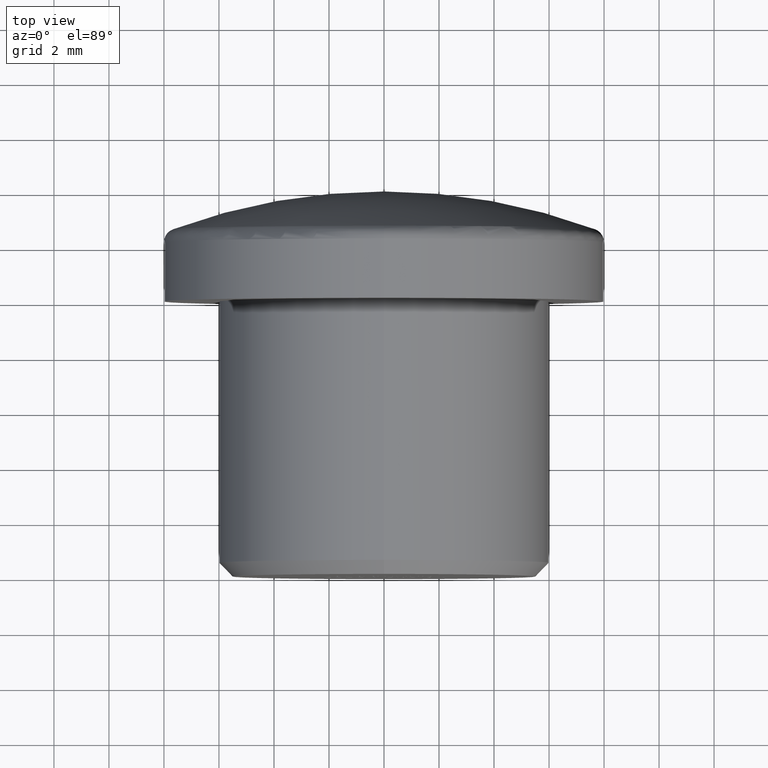
[diagram: clean part render]
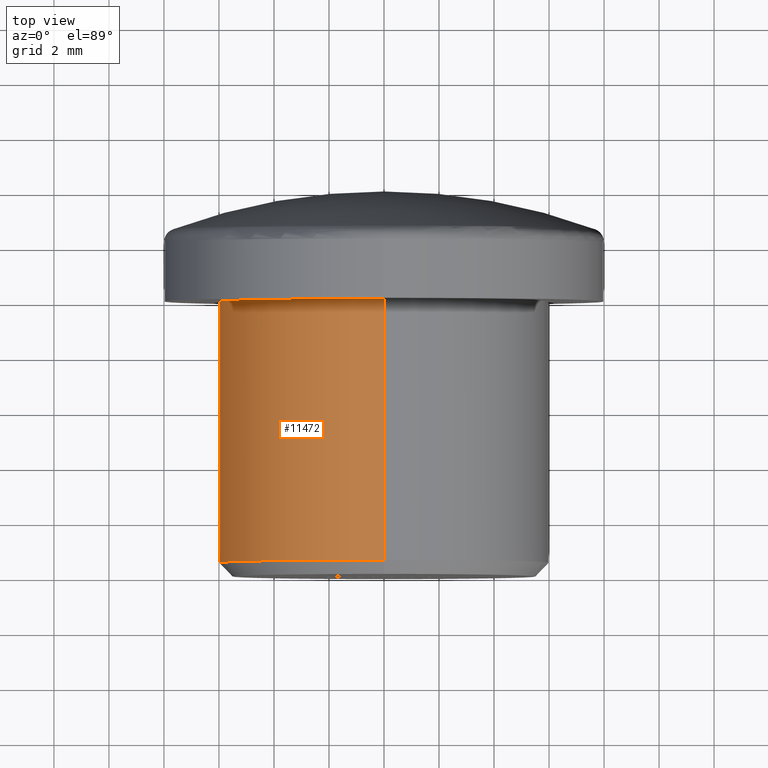
[diagram: same view with one face highlighted and labeled with its STEP entity id]
A machine part, top view. The second image highlights one B-rep face of the part: STEP entity #11472.
In plain terms, the highlighted cylindrical surface (partial cylindrical patch) has radius 6 mm, axis along (-0, -1, -0).
Its self-contained STEP definition (entity closure, byte-faithful):
#661 = VERTEX_POINT ( 'NONE', #1964 ) ;
#1613 = EDGE_LOOP ( 'NONE', ( #6560, #2227, #9747, #9414 ) ) ;
#1639 = DIRECTION ( 'NONE',  ( -0.0000000000000000000, -1.000000000000000000, -0.0000000000000000000 ) ) ;
#1964 = CARTESIAN_POINT ( 'NONE',  ( 7.347880794884119700E-016, 0.5000000000000030000, 6.000000000000000000 ) ) ;
#2142 = DIRECTION ( 'NONE',  ( -0.0000000000000000000, -1.000000000000000000, -0.0000000000000000000 ) ) ;
#2227 = ORIENTED_EDGE ( 'NONE', *, *, #12751, .T. ) ;
#2377 = CARTESIAN_POINT ( 'NONE',  ( 0.0000000000000000000, 10.00000000000000000, -6.000000000000000000 ) ) ;
#2971 = CIRCLE ( 'NONE', #11552, 6.000000000000000000 ) ;
#3160 = CARTESIAN_POINT ( 'NONE',  ( 0.0000000000000000000, 10.00000000000000000, 0.0000000000000000000 ) ) ;
#3791 = DIRECTION ( 'NONE',  ( -0.0000000000000000000, -1.000000000000000000, -0.0000000000000000000 ) ) ;
#5160 = DIRECTION ( 'NONE',  ( 0.0000000000000000000, 0.0000000000000000000, -1.000000000000000000 ) ) ;
#5452 = DIRECTION ( 'NONE',  ( 0.0000000000000000000, 0.0000000000000000000, -1.000000000000000000 ) ) ;
#5689 = VERTEX_POINT ( 'NONE', #2377 ) ;
#5727 = VECTOR ( 'NONE', #3791, 1000.000000000000000 ) ;
#6524 = DIRECTION ( 'NONE',  ( 0.0000000000000000000, 1.000000000000000000, 0.0000000000000000000 ) ) ;
#6560 = ORIENTED_EDGE ( 'NONE', *, *, #10414, .F. ) ;
#6738 = CARTESIAN_POINT ( 'NONE',  ( 0.0000000000000000000, 0.0000000000000000000, -6.000000000000000000 ) ) ;
#6890 = AXIS2_PLACEMENT_3D ( 'NONE', #7498, #1639, #5160 ) ;
#7400 = EDGE_CURVE ( 'NONE', #5689, #10031, #14852, .T. ) ;
#7498 = CARTESIAN_POINT ( 'NONE',  ( 0.0000000000000000000, 0.0000000000000000000, 0.0000000000000000000 ) ) ;
#9414 = ORIENTED_EDGE ( 'NONE', *, *, #11180, .T. ) ;
#9564 = LINE ( 'NONE', #13959, #5727 ) ;
#9690 = CARTESIAN_POINT ( 'NONE',  ( 0.0000000000000000000, 0.5000000000000030000, -6.000000000000000000 ) ) ;
#9747 = ORIENTED_EDGE ( 'NONE', *, *, #7400, .T. ) ;
#9805 = AXIS2_PLACEMENT_3D ( 'NONE', #11243, #6524, #5452 ) ;
#10031 = VERTEX_POINT ( 'NONE', #9690 ) ;
#10040 = CYLINDRICAL_SURFACE ( 'NONE', #6890, 6.000000000000000000 ) ;
#10414 = EDGE_CURVE ( 'NONE', #14756, #661, #9564, .T. ) ;
#10610 = CIRCLE ( 'NONE', #9805, 6.000000000000000000 ) ;
#10642 = CARTESIAN_POINT ( 'NONE',  ( 7.347880794884119700E-016, 10.00000000000000000, 6.000000000000000000 ) ) ;
#11141 = DIRECTION ( 'NONE',  ( 0.0000000000000000000, 0.0000000000000000000, -1.000000000000000000 ) ) ;
#11180 = EDGE_CURVE ( 'NONE', #10031, #661, #10610, .T. ) ;
#11243 = CARTESIAN_POINT ( 'NONE',  ( 0.0000000000000000000, 0.5000000000000030000, 0.0000000000000000000 ) ) ;
#11287 = DIRECTION ( 'NONE',  ( -0.0000000000000000000, -1.000000000000000000, -0.0000000000000000000 ) ) ;
#11472 = ADVANCED_FACE ( 'NONE', ( #13650 ), #10040, .T. ) ;
#11552 = AXIS2_PLACEMENT_3D ( 'NONE', #3160, #11287, #11141 ) ;
#12751 = EDGE_CURVE ( 'NONE', #14756, #5689, #2971, .T. ) ;
#12886 = VECTOR ( 'NONE', #2142, 1000.000000000000000 ) ;
#13650 = FACE_OUTER_BOUND ( 'NONE', #1613, .T. ) ;
#13959 = CARTESIAN_POINT ( 'NONE',  ( 7.347880794884119700E-016, 0.0000000000000000000, 6.000000000000000000 ) ) ;
#14756 = VERTEX_POINT ( 'NONE', #10642 ) ;
#14852 = LINE ( 'NONE', #6738, #12886 ) ;